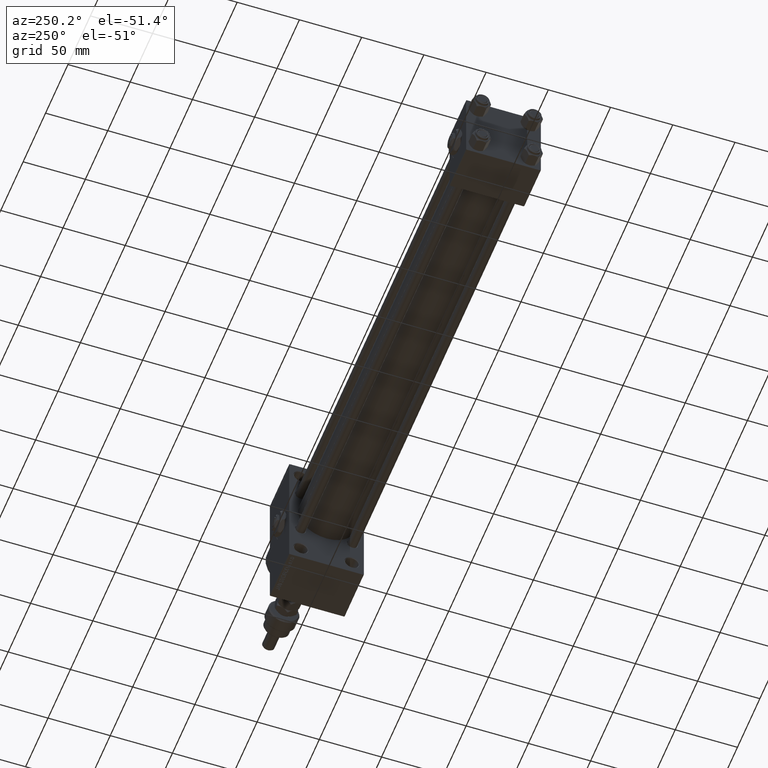
[diagram: clean part render]
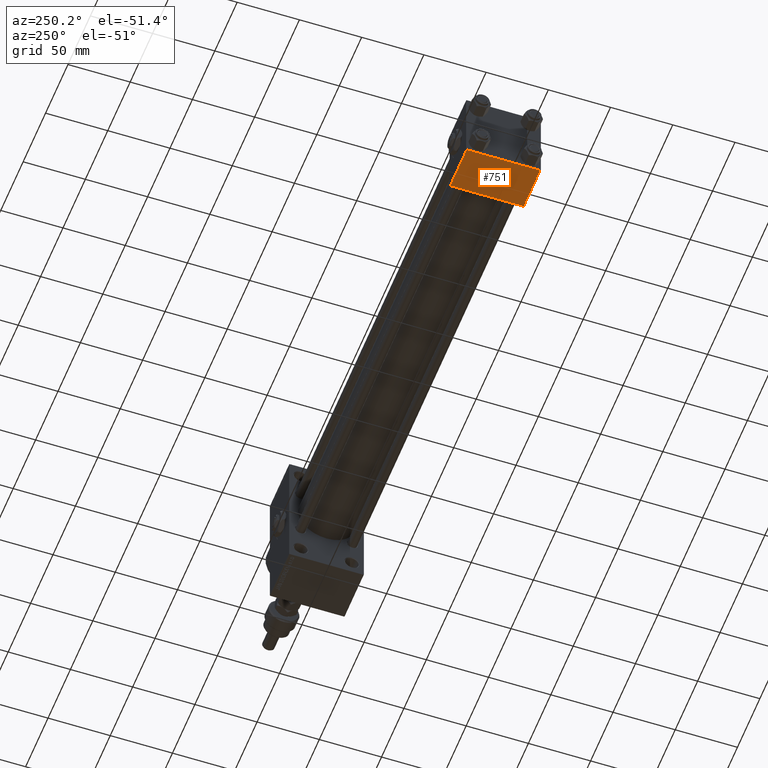
[diagram: same view with one face highlighted and labeled with its STEP entity id]
A machine part, auxiliary view. The second image highlights one B-rep face of the part: STEP entity #751.
In plain terms, the highlighted planar face has unit normal (0, 0, -1).
Its self-contained STEP definition (entity closure, byte-faithful):
#751 = ADVANCED_FACE ( 'NONE', ( #34289 ), #14791, .T. ) ;
#3672 = CARTESIAN_POINT ( 'NONE',  ( 0.000000000000000000, 29.49999999999997868, -30.00000000000000000 ) ) ;
#4243 = CARTESIAN_POINT ( 'NONE',  ( 37.00000000000000000, 29.99999999999999289, -30.00000000000000000 ) ) ;
#4998 = VECTOR ( 'NONE', #27363, 1000.000000000000000 ) ;
#5932 = EDGE_CURVE ( 'NONE', #14056, #16847, #42994, .T. ) ;
#6145 = EDGE_CURVE ( 'NONE', #16847, #15835, #40341, .T. ) ;
#8445 = DIRECTION ( 'NONE',  ( 0.000000000000000000, -1.000000000000000000, -1.156482317317871725E-16 ) ) ;
#9281 = VECTOR ( 'NONE', #18583, 1000.000000000000000 ) ;
#9585 = VECTOR ( 'NONE', #8445, 1000.000000000000000 ) ;
#10151 = CARTESIAN_POINT ( 'NONE',  ( 0.000000000000000000, -29.50000000000001066, -30.00000000000000711 ) ) ;
#11296 = CARTESIAN_POINT ( 'NONE',  ( 0.000000000000000000, 29.99999999999999289, -30.00000000000000000 ) ) ;
#11382 = CARTESIAN_POINT ( 'NONE',  ( 37.00000000000000000, 29.49999999999997868, -30.00000000000000000 ) ) ;
#14056 = VERTEX_POINT ( 'NONE', #3672 ) ;
#14791 = PLANE ( 'NONE',  #49890 ) ;
#15835 = VERTEX_POINT ( 'NONE', #20914 ) ;
#16847 = VERTEX_POINT ( 'NONE', #26423 ) ;
#18583 = DIRECTION ( 'NONE',  ( -1.000000000000000000, 0.000000000000000000, 0.000000000000000000 ) ) ;
#19859 = EDGE_CURVE ( 'NONE', #14056, #46215, #34733, .T. ) ;
#20914 = CARTESIAN_POINT ( 'NONE',  ( 37.00000000000000000, -29.50000000000000000, -30.00000000000000711 ) ) ;
#21971 = EDGE_CURVE ( 'NONE', #15835, #46215, #30944, .T. ) ;
#22351 = ORIENTED_EDGE ( 'NONE', *, *, #19859, .F. ) ;
#22628 = CARTESIAN_POINT ( 'NONE',  ( 0.000000000000000000, -29.50000000000000000, -30.00000000000000711 ) ) ;
#26423 = CARTESIAN_POINT ( 'NONE',  ( 37.00000000000000000, 29.49999999999997868, -30.00000000000000000 ) ) ;
#26911 = DIRECTION ( 'NONE',  ( 0.000000000000000000, 1.156482317317871725E-16, -1.000000000000000000 ) ) ;
#27363 = DIRECTION ( 'NONE',  ( 0.000000000000000000, -1.000000000000000000, -1.156482317317871725E-16 ) ) ;
#30084 = CARTESIAN_POINT ( 'NONE',  ( 37.00000000000000000, 29.99999999999999289, -30.00000000000000000 ) ) ;
#30944 = LINE ( 'NONE', #10151, #9281 ) ;
#34289 = FACE_OUTER_BOUND ( 'NONE', #45734, .T. ) ;
#34733 = LINE ( 'NONE', #11296, #4998 ) ;
#34806 = DIRECTION ( 'NONE',  ( 0.000000000000000000, 1.000000000000000000, 1.156482317317871725E-16 ) ) ;
#40341 = LINE ( 'NONE', #4243, #9585 ) ;
#42994 = LINE ( 'NONE', #11382, #43224 ) ;
#43224 = VECTOR ( 'NONE', #47741, 1000.000000000000000 ) ;
#45734 = EDGE_LOOP ( 'NONE', ( #22351, #47906, #48770, #51837 ) ) ;
#46215 = VERTEX_POINT ( 'NONE', #22628 ) ;
#47741 = DIRECTION ( 'NONE',  ( 1.000000000000000000, 0.000000000000000000, 0.000000000000000000 ) ) ;
#47906 = ORIENTED_EDGE ( 'NONE', *, *, #5932, .T. ) ;
#48770 = ORIENTED_EDGE ( 'NONE', *, *, #6145, .T. ) ;
#49890 = AXIS2_PLACEMENT_3D ( 'NONE', #30084, #26911, #34806 ) ;
#51837 = ORIENTED_EDGE ( 'NONE', *, *, #21971, .T. ) ;